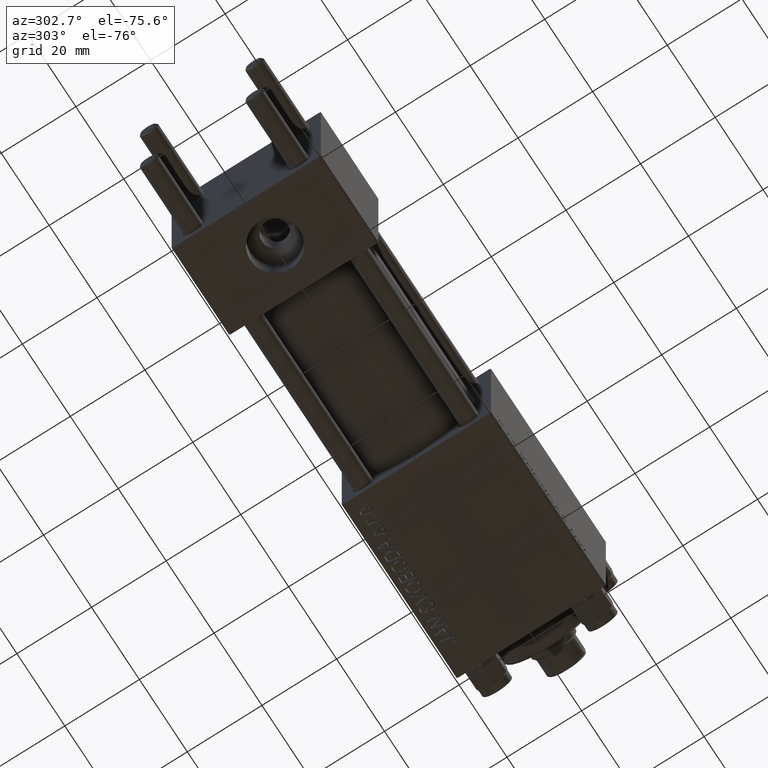
[diagram: clean part render]
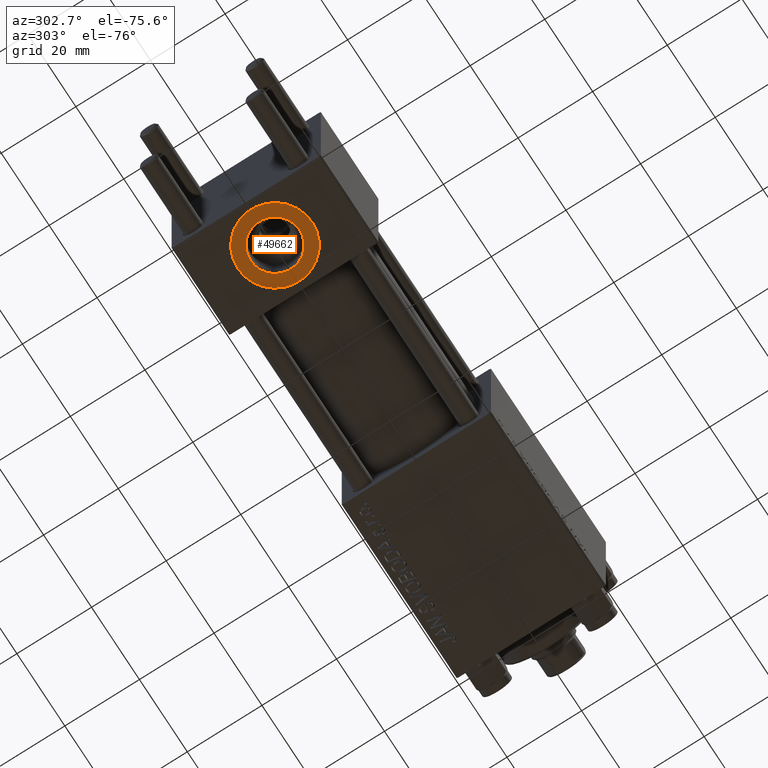
[diagram: same view with one face highlighted and labeled with its STEP entity id]
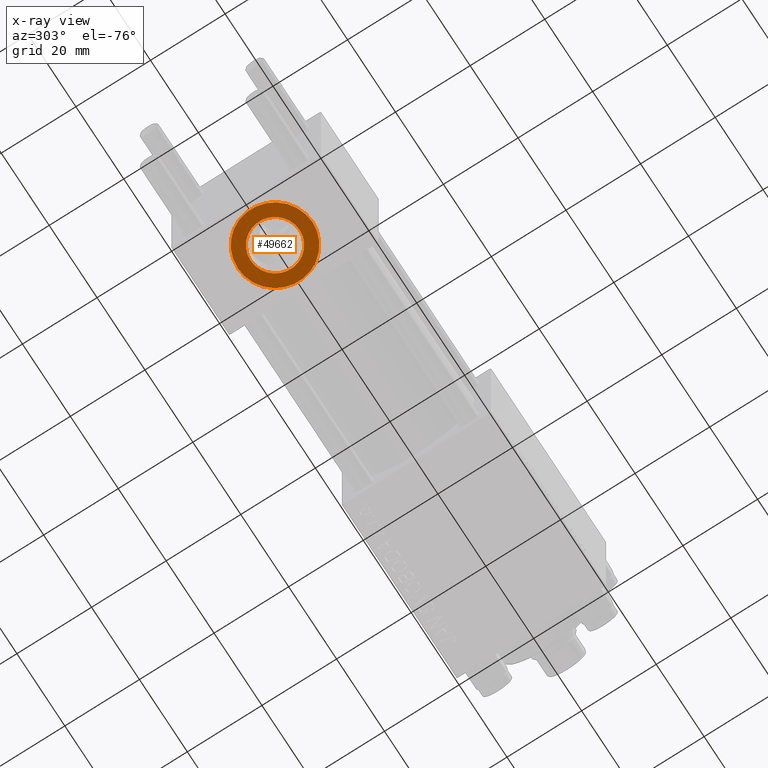
[diagram: x-ray of the same camera — body ghosted, the highlighted face saturated]
A machine part, auxiliary view. The second image highlights one B-rep face of the part: STEP entity #49662.
The next image is the same camera in x-ray: the body ghosted, the highlighted face saturated — about 0% of this face is hidden behind the body in this view.
In plain terms, the highlighted planar face has unit normal (0, -0, -1).
Its self-contained STEP definition (entity closure, byte-faithful):
#2770 = DIRECTION ( 'NONE',  ( 0.000000000000000000, -1.734723475976806848E-16, -1.000000000000000000 ) ) ;
#4461 = CARTESIAN_POINT ( 'NONE',  ( 12.00000000000000178, -10.00000000000000711, -19.80000000000000426 ) ) ;
#6444 = DIRECTION ( 'NONE',  ( 0.000000000000000000, 1.000000000000000000, -1.734723475976806848E-16 ) ) ;
#7187 = AXIS2_PLACEMENT_3D ( 'NONE', #37649, #10056, #33485 ) ;
#8006 = CIRCLE ( 'NONE', #7187, 6.580000000000000071 ) ;
#8158 = EDGE_LOOP ( 'NONE', ( #18463, #12232 ) ) ;
#8999 = AXIS2_PLACEMENT_3D ( 'NONE', #13743, #29613, #17909 ) ;
#10056 = DIRECTION ( 'NONE',  ( 0.000000000000000000, -1.734723475976806848E-16, -1.000000000000000000 ) ) ;
#12232 = ORIENTED_EDGE ( 'NONE', *, *, #47287, .T. ) ;
#13279 = VERTEX_POINT ( 'NONE', #4461 ) ;
#13743 = CARTESIAN_POINT ( 'NONE',  ( 12.00000000000000000, -4.904328641410902191E-15, -19.80000000000000426 ) ) ;
#15538 = DIRECTION ( 'NONE',  ( 0.000000000000000000, 1.000000000000000000, 0.000000000000000000 ) ) ;
#17137 = VERTEX_POINT ( 'NONE', #35794 ) ;
#17223 = CIRCLE ( 'NONE', #46326, 10.00000000000000178 ) ;
#17909 = DIRECTION ( 'NONE',  ( 0.000000000000000000, 1.000000000000000000, 0.000000000000000000 ) ) ;
#18463 = ORIENTED_EDGE ( 'NONE', *, *, #31314, .T. ) ;
#18640 = DIRECTION ( 'NONE',  ( 0.000000000000000000, 1.000000000000000000, 0.000000000000000000 ) ) ;
#19184 = DIRECTION ( 'NONE',  ( 0.000000000000000000, -1.734723475976806848E-16, -1.000000000000000000 ) ) ;
#22422 = EDGE_CURVE ( 'NONE', #42039, #17137, #8006, .T. ) ;
#22550 = CARTESIAN_POINT ( 'NONE',  ( 12.00000000000000000, -4.904328641410901403E-15, -19.80000000000000426 ) ) ;
#22833 = FACE_BOUND ( 'NONE', #37666, .T. ) ;
#27425 = CIRCLE ( 'NONE', #40732, 10.00000000000000178 ) ;
#28009 = CARTESIAN_POINT ( 'NONE',  ( 12.00000000000000000, -4.904328641410901403E-15, -19.80000000000000426 ) ) ;
#29613 = DIRECTION ( 'NONE',  ( 0.000000000000000000, -1.734723475976806848E-16, -1.000000000000000000 ) ) ;
#31047 = VERTEX_POINT ( 'NONE', #35877 ) ;
#31314 = EDGE_CURVE ( 'NONE', #31047, #13279, #27425, .T. ) ;
#33485 = DIRECTION ( 'NONE',  ( 0.000000000000000000, 1.000000000000000000, 0.000000000000000000 ) ) ;
#34800 = PLANE ( 'NONE',  #48936 ) ;
#35794 = CARTESIAN_POINT ( 'NONE',  ( 12.00000000000000000, -6.580000000000006288, -19.80000000000000426 ) ) ;
#35877 = CARTESIAN_POINT ( 'NONE',  ( 12.00000000000000000, 9.999999999999996447, -19.80000000000000426 ) ) ;
#37649 = CARTESIAN_POINT ( 'NONE',  ( 12.00000000000000000, -4.904328641410902191E-15, -19.80000000000000426 ) ) ;
#37666 = EDGE_LOOP ( 'NONE', ( #38969, #43191 ) ) ;
#38959 = DIRECTION ( 'NONE',  ( 0.000000000000000000, -1.734723475976806848E-16, -1.000000000000000000 ) ) ;
#38969 = ORIENTED_EDGE ( 'NONE', *, *, #22422, .F. ) ;
#40732 = AXIS2_PLACEMENT_3D ( 'NONE', #28009, #38959, #15538 ) ;
#42039 = VERTEX_POINT ( 'NONE', #46359 ) ;
#42100 = FACE_OUTER_BOUND ( 'NONE', #8158, .T. ) ;
#42873 = CARTESIAN_POINT ( 'NONE',  ( 12.00000000000000000, -4.904328641410901403E-15, -19.80000000000000426 ) ) ;
#43191 = ORIENTED_EDGE ( 'NONE', *, *, #49601, .F. ) ;
#46326 = AXIS2_PLACEMENT_3D ( 'NONE', #22550, #2770, #18640 ) ;
#46359 = CARTESIAN_POINT ( 'NONE',  ( 12.00000000000000000, 6.579999999999994742, -19.80000000000000426 ) ) ;
#47287 = EDGE_CURVE ( 'NONE', #13279, #31047, #17223, .T. ) ;
#48071 = CIRCLE ( 'NONE', #8999, 6.580000000000000071 ) ;
#48936 = AXIS2_PLACEMENT_3D ( 'NONE', #42873, #19184, #6444 ) ;
#49601 = EDGE_CURVE ( 'NONE', #17137, #42039, #48071, .T. ) ;
#49662 = ADVANCED_FACE ( 'NONE', ( #22833, #42100 ), #34800, .T. ) ;